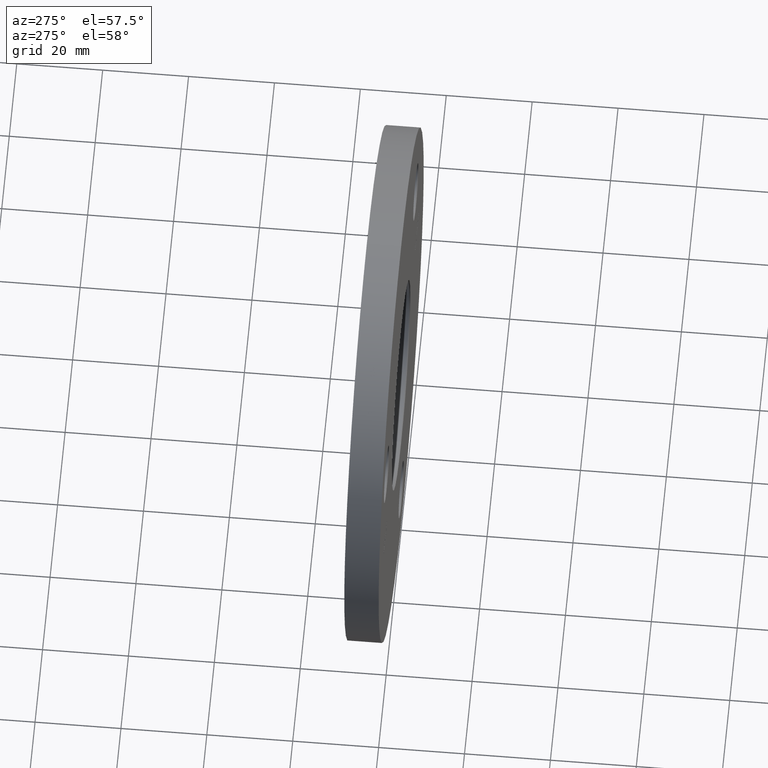
[diagram: clean part render]
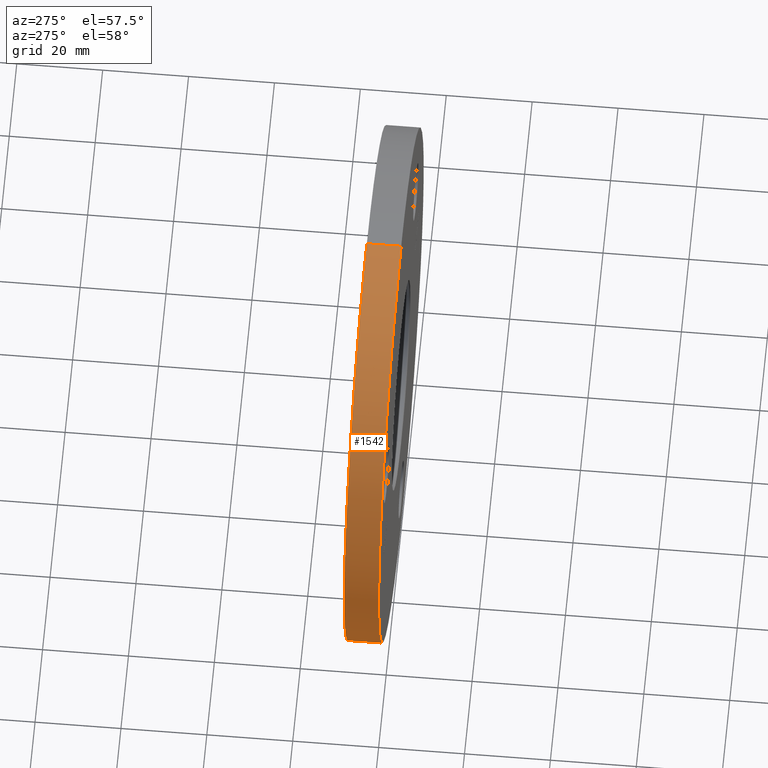
[diagram: same view with one face highlighted and labeled with its STEP entity id]
A machine part, auxiliary view. The second image highlights one B-rep face of the part: STEP entity #1542.
In plain terms, the highlighted cylindrical surface (partial cylindrical patch) has radius 60 mm, axis along (-0, -1, -0).
Its self-contained STEP definition (entity closure, byte-faithful):
#606 = EDGE_CURVE ( 'NONE', #10720, #4666, #5119, .T. ) ;
#1032 = EDGE_LOOP ( 'NONE', ( #9527, #6339, #8457, #9761 ) ) ;
#1289 = EDGE_CURVE ( 'NONE', #4071, #10720, #9622, .T. ) ;
#1372 = VECTOR ( 'NONE', #11557, 1000.000000000000000 ) ;
#1505 = DIRECTION ( 'NONE',  ( 0.000000000000000000, 1.000000000000000000, 0.000000000000000000 ) ) ;
#1542 = ADVANCED_FACE ( 'NONE', ( #6234 ), #4943, .T. ) ;
#1596 = CARTESIAN_POINT ( 'NONE',  ( 0.000000000000000000, 8.000000000000000000, 0.000000000000000000 ) ) ;
#1727 = DIRECTION ( 'NONE',  ( 0.000000000000000000, 0.000000000000000000, -1.000000000000000000 ) ) ;
#2754 = AXIS2_PLACEMENT_3D ( 'NONE', #1596, #7903, #1727 ) ;
#3327 = EDGE_CURVE ( 'NONE', #7598, #4666, #5403, .T. ) ;
#4071 = VERTEX_POINT ( 'NONE', #5741 ) ;
#4666 = VERTEX_POINT ( 'NONE', #5940 ) ;
#4699 = DIRECTION ( 'NONE',  ( 0.000000000000000000, 1.000000000000000000, 0.000000000000000000 ) ) ;
#4943 = CYLINDRICAL_SURFACE ( 'NONE', #2754, 60.00000000000000000 ) ;
#5119 = CIRCLE ( 'NONE', #9337, 60.00000000000000000 ) ;
#5403 = LINE ( 'NONE', #6590, #6520 ) ;
#5741 = CARTESIAN_POINT ( 'NONE',  ( 0.000000000000000000, 8.000000000000000000, -60.00000000000000000 ) ) ;
#5849 = AXIS2_PLACEMENT_3D ( 'NONE', #12923, #4699, #10787 ) ;
#5940 = CARTESIAN_POINT ( 'NONE',  ( 7.347880794884118356E-15, 0.000000000000000000, 60.00000000000000000 ) ) ;
#6234 = FACE_OUTER_BOUND ( 'NONE', #1032, .T. ) ;
#6339 = ORIENTED_EDGE ( 'NONE', *, *, #8236, .F. ) ;
#6520 = VECTOR ( 'NONE', #10838, 1000.000000000000000 ) ;
#6590 = CARTESIAN_POINT ( 'NONE',  ( 7.347880794884118356E-15, 8.000000000000000000, 60.00000000000000000 ) ) ;
#6675 = DIRECTION ( 'NONE',  ( 0.000000000000000000, 0.000000000000000000, 1.000000000000000000 ) ) ;
#7370 = CARTESIAN_POINT ( 'NONE',  ( 7.347880794884118356E-15, 8.000000000000000000, 60.00000000000000000 ) ) ;
#7598 = VERTEX_POINT ( 'NONE', #7370 ) ;
#7903 = DIRECTION ( 'NONE',  ( -0.000000000000000000, -1.000000000000000000, -0.000000000000000000 ) ) ;
#7916 = CARTESIAN_POINT ( 'NONE',  ( 0.000000000000000000, 0.000000000000000000, -60.00000000000000000 ) ) ;
#8236 = EDGE_CURVE ( 'NONE', #4071, #7598, #9386, .T. ) ;
#8457 = ORIENTED_EDGE ( 'NONE', *, *, #1289, .T. ) ;
#9337 = AXIS2_PLACEMENT_3D ( 'NONE', #12890, #1505, #6675 ) ;
#9386 = CIRCLE ( 'NONE', #5849, 60.00000000000000000 ) ;
#9527 = ORIENTED_EDGE ( 'NONE', *, *, #3327, .F. ) ;
#9599 = CARTESIAN_POINT ( 'NONE',  ( 0.000000000000000000, 8.000000000000000000, -60.00000000000000000 ) ) ;
#9622 = LINE ( 'NONE', #9599, #1372 ) ;
#9761 = ORIENTED_EDGE ( 'NONE', *, *, #606, .T. ) ;
#10720 = VERTEX_POINT ( 'NONE', #7916 ) ;
#10787 = DIRECTION ( 'NONE',  ( 0.000000000000000000, 0.000000000000000000, 1.000000000000000000 ) ) ;
#10838 = DIRECTION ( 'NONE',  ( -0.000000000000000000, -1.000000000000000000, -0.000000000000000000 ) ) ;
#11557 = DIRECTION ( 'NONE',  ( -0.000000000000000000, -1.000000000000000000, -0.000000000000000000 ) ) ;
#12890 = CARTESIAN_POINT ( 'NONE',  ( 0.000000000000000000, 0.000000000000000000, 0.000000000000000000 ) ) ;
#12923 = CARTESIAN_POINT ( 'NONE',  ( 0.000000000000000000, 8.000000000000000000, 0.000000000000000000 ) ) ;